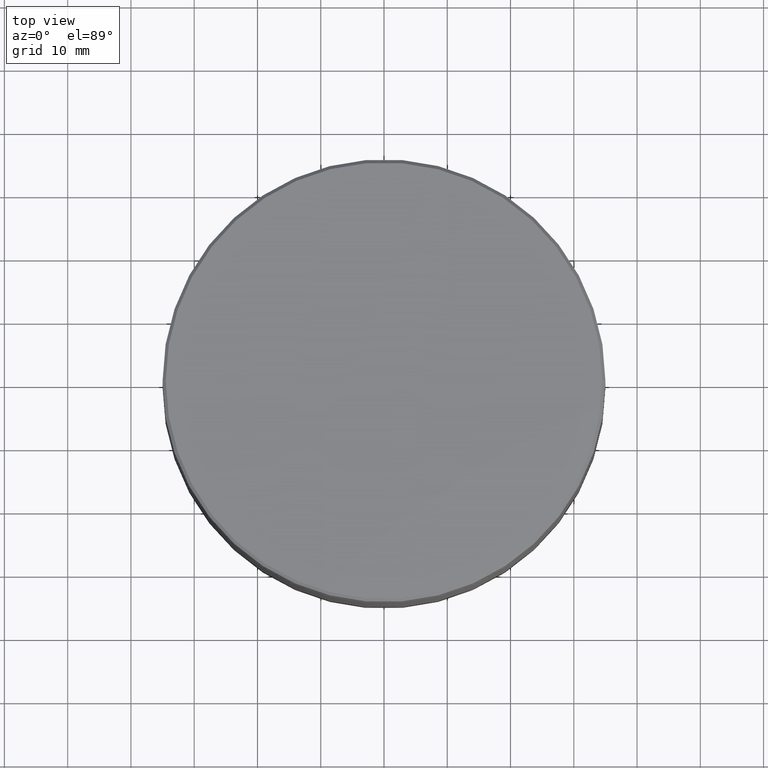
[diagram: clean part render]
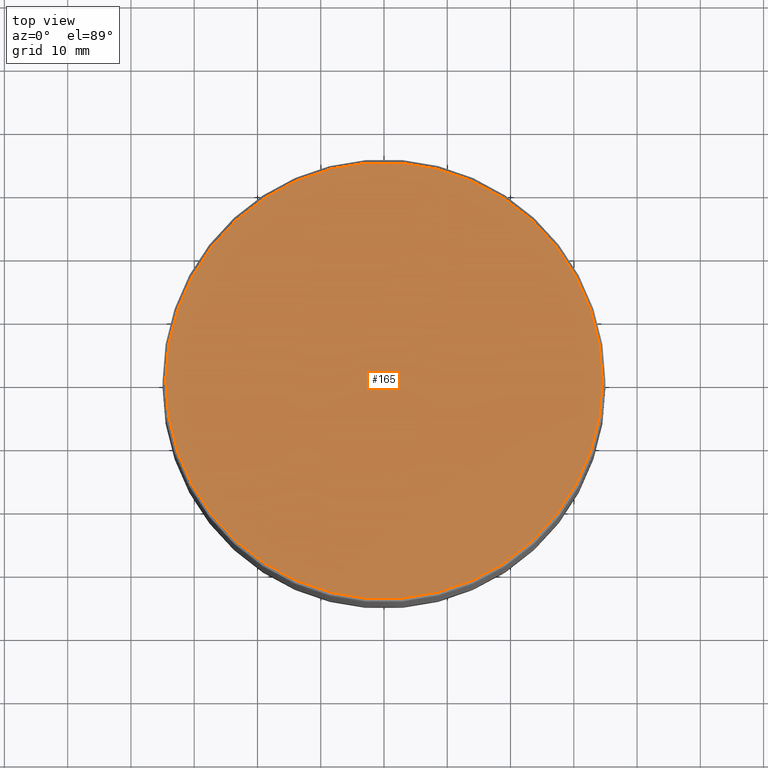
[diagram: same view with one face highlighted and labeled with its STEP entity id]
A machine part, top view. The second image highlights one B-rep face of the part: STEP entity #165.
In plain terms, the highlighted planar face has unit normal (0, -0, 1).
Its self-contained STEP definition (entity closure, byte-faithful):
#9 = EDGE_LOOP ( 'NONE', ( #514, #355 ) ) ;
#79 = PLANE ( 'NONE',  #423 ) ;
#82 = DIRECTION ( 'NONE',  ( 0.000000000000000000, -0.000000000000000000, 1.000000000000000000 ) ) ;
#92 = FACE_OUTER_BOUND ( 'NONE', #9, .T. ) ;
#101 = EDGE_CURVE ( 'NONE', #106, #339, #488, .T. ) ;
#106 = VERTEX_POINT ( 'NONE', #564 ) ;
#151 = DIRECTION ( 'NONE',  ( 1.000000000000000000, 0.000000000000000000, 0.000000000000000000 ) ) ;
#165 = ADVANCED_FACE ( 'NONE', ( #92 ), #79, .T. ) ;
#194 = AXIS2_PLACEMENT_3D ( 'NONE', #499, #549, #151 ) ;
#210 = CARTESIAN_POINT ( 'NONE',  ( 0.000000000000000000, 0.000000000000000000, 0.000000000000000000 ) ) ;
#221 = DIRECTION ( 'NONE',  ( -0.000000000000000000, -0.000000000000000000, 1.000000000000000000 ) ) ;
#265 = DIRECTION ( 'NONE',  ( 1.000000000000000000, 0.000000000000000000, 0.000000000000000000 ) ) ;
#339 = VERTEX_POINT ( 'NONE', #541 ) ;
#344 = EDGE_CURVE ( 'NONE', #339, #106, #378, .T. ) ;
#355 = ORIENTED_EDGE ( 'NONE', *, *, #101, .T. ) ;
#378 = CIRCLE ( 'NONE', #194, 34.50000000000001421 ) ;
#423 = AXIS2_PLACEMENT_3D ( 'NONE', #432, #82, #265 ) ;
#432 = CARTESIAN_POINT ( 'NONE',  ( 0.000000000000000000, 0.000000000000000000, 0.000000000000000000 ) ) ;
#462 = AXIS2_PLACEMENT_3D ( 'NONE', #210, #221, #566 ) ;
#488 = CIRCLE ( 'NONE', #462, 34.50000000000001421 ) ;
#499 = CARTESIAN_POINT ( 'NONE',  ( 0.000000000000000000, 0.000000000000000000, 0.000000000000000000 ) ) ;
#514 = ORIENTED_EDGE ( 'NONE', *, *, #344, .T. ) ;
#541 = CARTESIAN_POINT ( 'NONE',  ( -34.50000000000001421, 0.000000000000000000, 0.000000000000000000 ) ) ;
#549 = DIRECTION ( 'NONE',  ( -0.000000000000000000, -0.000000000000000000, 1.000000000000000000 ) ) ;
#564 = CARTESIAN_POINT ( 'NONE',  ( 34.50000000000001421, 4.255647627037053498E-15, 0.000000000000000000 ) ) ;
#566 = DIRECTION ( 'NONE',  ( 1.000000000000000000, 0.000000000000000000, 0.000000000000000000 ) ) ;